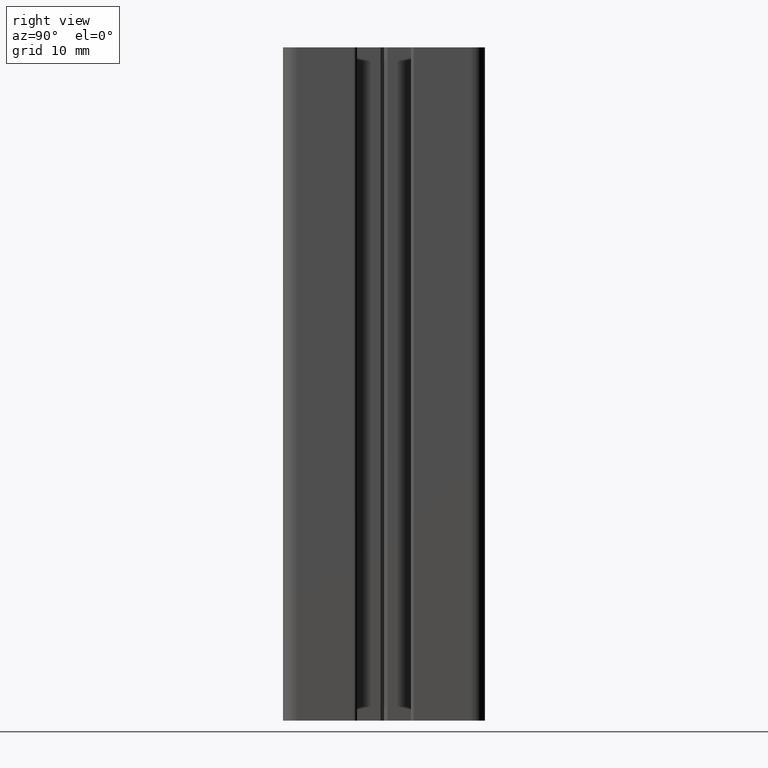
[diagram: clean part render]
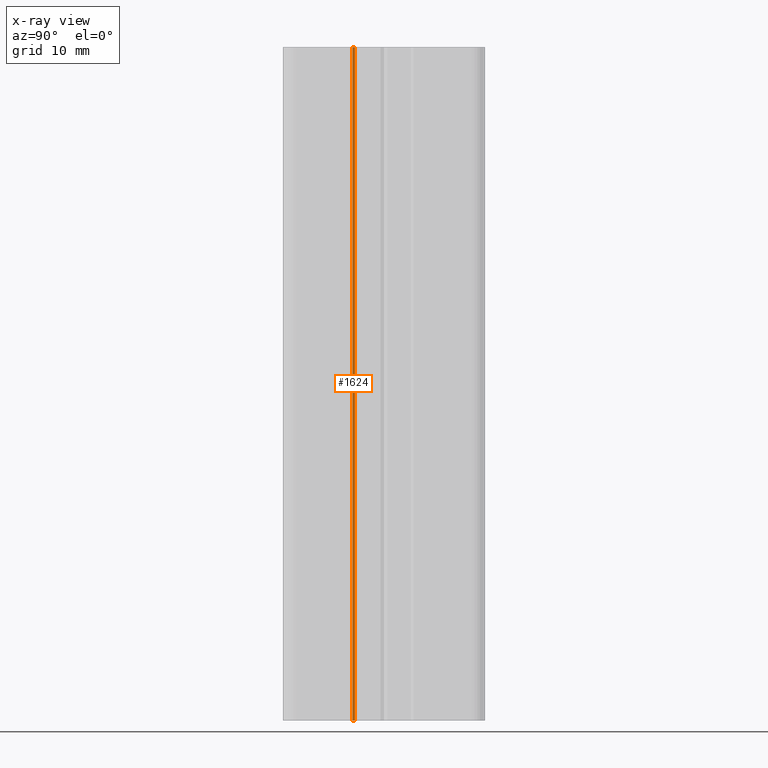
[diagram: x-ray — body ghosted, one internal face saturated and labeled with its STEP entity id]
A machine part, right view, then the same camera in x-ray: the body is ghosted and one INTERNAL B-rep face — a face not visible from any outside direction — is saturated and labeled: STEP entity #1624.
In plain terms, the highlighted cylindrical surface (edge-blend (fillet) strip) has radius 0.5 mm, axis along (0, 0, 1).
Its self-contained STEP definition (entity closure, byte-faithful):
#91=FACE_OUTER_BOUND('',#175,.T.);
#175=EDGE_LOOP('',(#1149,#1150,#1151,#1152));
#286=LINE('',#2424,#465);
#287=LINE('',#2430,#466);
#465=VECTOR('',#1940,100.);
#466=VECTOR('',#1947,100.);
#624=CIRCLE('',#1725,0.500000002025547);
#625=CIRCLE('',#1726,0.500000002025547);
#708=VERTEX_POINT('',#2420);
#709=VERTEX_POINT('',#2422);
#710=VERTEX_POINT('',#2426);
#711=VERTEX_POINT('',#2428);
#888=EDGE_CURVE('',#709,#708,#286,.T.);
#889=EDGE_CURVE('',#708,#710,#624,.T.);
#890=EDGE_CURVE('',#711,#709,#625,.T.);
#891=EDGE_CURVE('',#711,#710,#287,.T.);
#1149=ORIENTED_EDGE('',*,*,#889,.F.);
#1150=ORIENTED_EDGE('',*,*,#888,.F.);
#1151=ORIENTED_EDGE('',*,*,#890,.F.);
#1152=ORIENTED_EDGE('',*,*,#891,.T.);
#1582=CYLINDRICAL_SURFACE('',#1724,0.500000002025547);
#1624=ADVANCED_FACE('',(#91),#1582,.F.);
#1724=AXIS2_PLACEMENT_3D('',#2425,#1941,#1942);
#1725=AXIS2_PLACEMENT_3D('',#2427,#1943,#1944);
#1726=AXIS2_PLACEMENT_3D('',#2429,#1945,#1946);
#1940=DIRECTION('',(0.,0.,1.));
#1941=DIRECTION('center_axis',(0.,0.,1.));
#1942=DIRECTION('ref_axis',(-0.707106779731151,0.707106782641944,0.));
#1943=DIRECTION('center_axis',(0.,0.,-1.));
#1944=DIRECTION('ref_axis',(-0.707106779731151,0.707106782641944,0.));
#1945=DIRECTION('center_axis',(0.,0.,1.));
#1946=DIRECTION('ref_axis',(-0.707106779731151,0.707106782641944,0.));
#1947=DIRECTION('',(0.,0.,1.));
#2420=CARTESIAN_POINT('',(-5.80000002648629,-4.32010008387194,100.));
#2422=CARTESIAN_POINT('',(-5.80000002648629,-4.32010008387194,0.));
#2424=CARTESIAN_POINT('',(-5.80000002648629,-4.32010008387194,0.));
#2425=CARTESIAN_POINT('Origin',(-6.3000000285118,-4.32010008387194,0.));
#2426=CARTESIAN_POINT('',(-5.94644663721397,-4.67365347662517,100.));
#2427=CARTESIAN_POINT('Origin',(-6.3000000285118,-4.32010008387194,100.));
#2428=CARTESIAN_POINT('',(-5.94644663721397,-4.67365347662517,0.));
#2429=CARTESIAN_POINT('Origin',(-6.3000000285118,-4.32010008387194,0.));
#2430=CARTESIAN_POINT('',(-5.94644663721397,-4.67365347662517,0.));